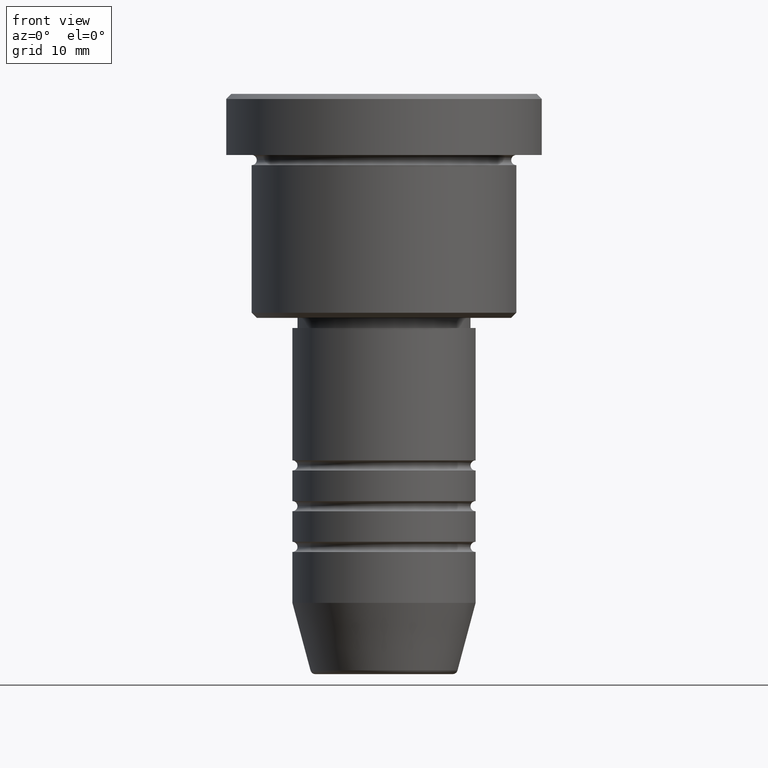
[diagram: clean part render]
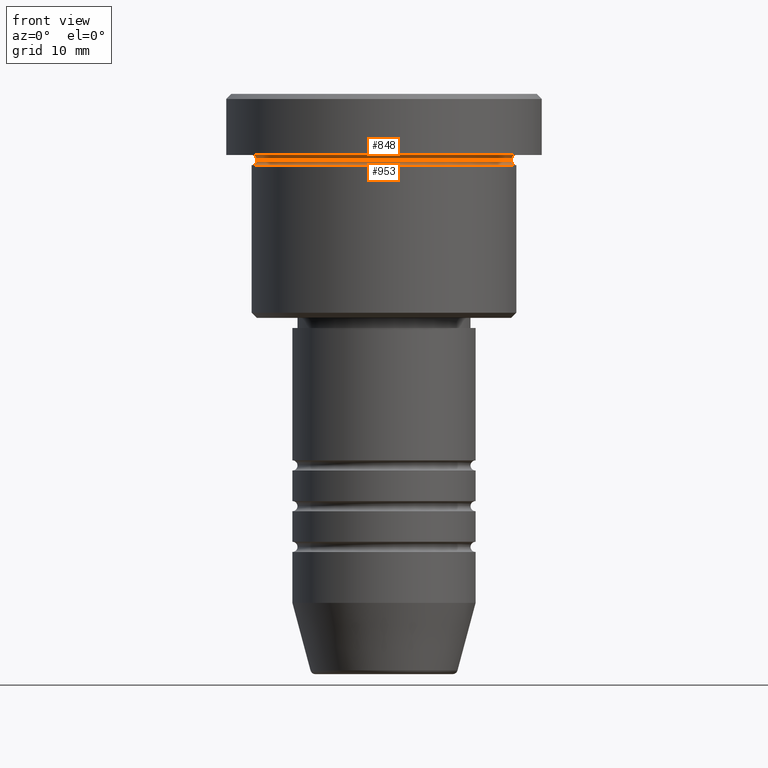
[diagram: same view with one multi-face feature highlighted, each face labeled with its STEP entity id]
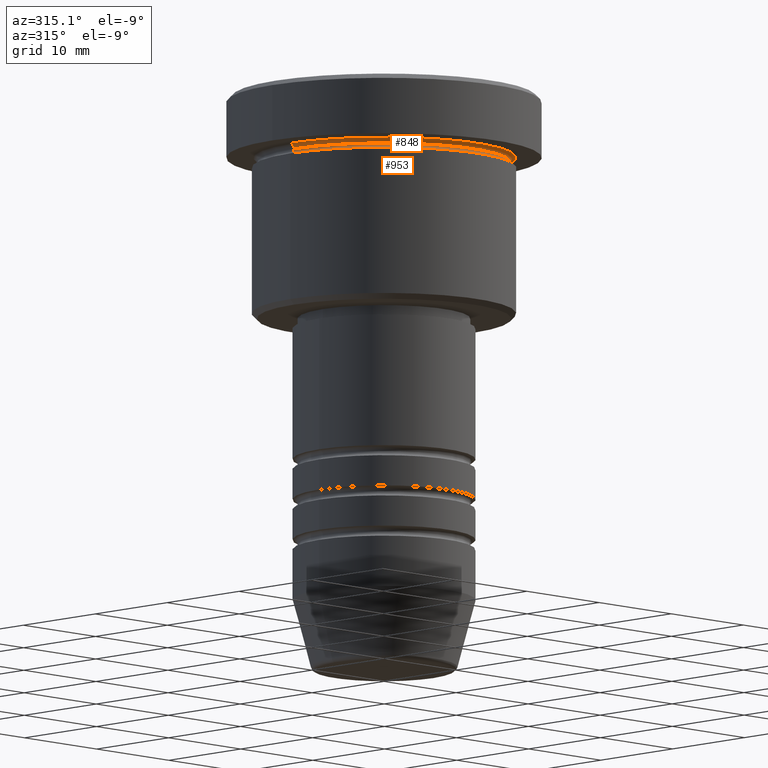
[diagram: same view with one multi-face feature highlighted, each face labeled with its STEP entity id]
A machine part, front view. The highlighted faces form ONE feature: a constant-radius fillet chain: 2 tangent blend faces with common blend radius 0.5 mm. The faces share edges in the B-rep.
A second angle (auxiliary view) of the same feature is appended — it is thin or edge-on in the first view.
Their STEP definitions:
[1] entity #848 (Torus):
#8 = CARTESIAN_POINT ( 'NONE',  ( 12.49999999999999822, 0.000000000000000000, -6.499999999999995559 ) ) ;
#29 = EDGE_LOOP ( 'NONE', ( #573, #496, #822, #143 ) ) ;
#44 = CIRCLE ( 'NONE', #382, 0.5000000000000004441 ) ;
#92 = DIRECTION ( 'NONE',  ( 1.000000000000000000, 0.000000000000000000, 0.000000000000000000 ) ) ;
#99 = EDGE_CURVE ( 'NONE', #990, #219, #618, .T. ) ;
#143 = ORIENTED_EDGE ( 'NONE', *, *, #99, .F. ) ;
#147 = EDGE_CURVE ( 'NONE', #996, #992, #44, .T. ) ;
#160 = CIRCLE ( 'NONE', #558, 13.00000000000000000 ) ;
#197 = AXIS2_PLACEMENT_3D ( 'NONE', #1046, #302, #389 ) ;
#214 = CIRCLE ( 'NONE', #1061, 12.49999999999999822 ) ;
#219 = VERTEX_POINT ( 'NONE', #483 ) ;
#236 = CARTESIAN_POINT ( 'NONE',  ( 0.000000000000000000, 0.000000000000000000, -6.499999999999995559 ) ) ;
#248 = DIRECTION ( 'NONE',  ( -1.000000000000000000, 0.000000000000000000, 0.000000000000000000 ) ) ;
#289 = DIRECTION ( 'NONE',  ( -1.000000000000000000, -1.224646799147353454E-16, 0.000000000000000000 ) ) ;
#300 = DIRECTION ( 'NONE',  ( -0.000000000000000000, -0.000000000000000000, 1.000000000000000000 ) ) ;
#302 = DIRECTION ( 'NONE',  ( -0.000000000000000000, -1.000000000000000000, -0.000000000000000000 ) ) ;
#366 = CARTESIAN_POINT ( 'NONE',  ( 13.00000000000000000, 1.592040838891559095E-15, -5.999999999999994671 ) ) ;
#371 = CARTESIAN_POINT ( 'NONE',  ( -12.49999999999999822, 1.561424668912875308E-15, -6.499999999999995559 ) ) ;
#377 = CARTESIAN_POINT ( 'NONE',  ( 13.00000000000000000, 1.592040838891559095E-15, -6.499999999999995559 ) ) ;
#382 = AXIS2_PLACEMENT_3D ( 'NONE', #377, #547, #289 ) ;
#389 = DIRECTION ( 'NONE',  ( 0.000000000000000000, 0.000000000000000000, -1.000000000000000000 ) ) ;
#483 = CARTESIAN_POINT ( 'NONE',  ( -13.00000000000000000, 0.000000000000000000, -5.999999999999994671 ) ) ;
#496 = ORIENTED_EDGE ( 'NONE', *, *, #147, .T. ) ;
#546 = CARTESIAN_POINT ( 'NONE',  ( 0.000000000000000000, 0.000000000000000000, -5.999999999999995559 ) ) ;
#547 = DIRECTION ( 'NONE',  ( -1.224646799147353207E-16, 1.000000000000000000, 0.000000000000000000 ) ) ;
#558 = AXIS2_PLACEMENT_3D ( 'NONE', #546, #300, #995 ) ;
#569 = EDGE_CURVE ( 'NONE', #990, #996, #214, .T. ) ;
#573 = ORIENTED_EDGE ( 'NONE', *, *, #569, .T. ) ;
#618 = CIRCLE ( 'NONE', #197, 0.5000000000000004441 ) ;
#705 = AXIS2_PLACEMENT_3D ( 'NONE', #236, #786, #248 ) ;
#715 = FACE_OUTER_BOUND ( 'NONE', #29, .T. ) ;
#786 = DIRECTION ( 'NONE',  ( 0.000000000000000000, 0.000000000000000000, -1.000000000000000000 ) ) ;
#822 = ORIENTED_EDGE ( 'NONE', *, *, #913, .F. ) ;
#848 = ADVANCED_FACE ( 'NONE', ( #715 ), #1044, .F. ) ;
#913 = EDGE_CURVE ( 'NONE', #219, #992, #160, .T. ) ;
#990 = VERTEX_POINT ( 'NONE', #371 ) ;
#992 = VERTEX_POINT ( 'NONE', #366 ) ;
#995 = DIRECTION ( 'NONE',  ( -1.000000000000000000, 0.000000000000000000, 0.000000000000000000 ) ) ;
#996 = VERTEX_POINT ( 'NONE', #8 ) ;
#997 = DIRECTION ( 'NONE',  ( -0.000000000000000000, -0.000000000000000000, 1.000000000000000000 ) ) ;
#1010 = CARTESIAN_POINT ( 'NONE',  ( 0.000000000000000000, 0.000000000000000000, -6.499999999999995559 ) ) ;
#1044 = TOROIDAL_SURFACE ( 'NONE', #705, 13.00000000000000000, 0.5000000000000000000 ) ;
#1046 = CARTESIAN_POINT ( 'NONE',  ( -13.00000000000000000, 0.000000000000000000, -6.499999999999995559 ) ) ;
#1061 = AXIS2_PLACEMENT_3D ( 'NONE', #1010, #997, #92 ) ;
[2] entity #953 (Torus):
#6 = CARTESIAN_POINT ( 'NONE',  ( 13.00000000000000178, 0.000000000000000000, -6.999999999999995559 ) ) ;
#8 = CARTESIAN_POINT ( 'NONE',  ( 12.49999999999999822, 0.000000000000000000, -6.499999999999995559 ) ) ;
#85 = TOROIDAL_SURFACE ( 'NONE', #818, 13.00000000000000000, 0.5000000000000000000 ) ;
#92 = DIRECTION ( 'NONE',  ( 1.000000000000000000, 0.000000000000000000, 0.000000000000000000 ) ) ;
#95 = DIRECTION ( 'NONE',  ( -0.000000000000000000, -0.000000000000000000, 1.000000000000000000 ) ) ;
#171 = EDGE_LOOP ( 'NONE', ( #534, #1067, #478, #1097 ) ) ;
#174 = CARTESIAN_POINT ( 'NONE',  ( 0.000000000000000000, 0.000000000000000000, -6.499999999999995559 ) ) ;
#205 = DIRECTION ( 'NONE',  ( 1.000000000000000000, 0.000000000000000000, 0.000000000000000000 ) ) ;
#214 = CIRCLE ( 'NONE', #1061, 12.49999999999999822 ) ;
#301 = DIRECTION ( 'NONE',  ( 0.000000000000000000, -1.000000000000000000, 0.000000000000000000 ) ) ;
#371 = CARTESIAN_POINT ( 'NONE',  ( -12.49999999999999822, 1.561424668912875308E-15, -6.499999999999995559 ) ) ;
#381 = EDGE_CURVE ( 'NONE', #600, #956, #664, .T. ) ;
#412 = DIRECTION ( 'NONE',  ( -0.000000000000000000, -0.000000000000000000, 1.000000000000000000 ) ) ;
#426 = CARTESIAN_POINT ( 'NONE',  ( 0.000000000000000000, 0.000000000000000000, -6.999999999999995559 ) ) ;
#438 = AXIS2_PLACEMENT_3D ( 'NONE', #426, #412, #787 ) ;
#465 = DIRECTION ( 'NONE',  ( 0.000000000000000000, 0.000000000000000000, -1.000000000000000000 ) ) ;
#478 = ORIENTED_EDGE ( 'NONE', *, *, #381, .T. ) ;
#534 = ORIENTED_EDGE ( 'NONE', *, *, #569, .F. ) ;
#557 = CIRCLE ( 'NONE', #1180, 0.5000000000000004441 ) ;
#569 = EDGE_CURVE ( 'NONE', #990, #996, #214, .T. ) ;
#600 = VERTEX_POINT ( 'NONE', #928 ) ;
#659 = EDGE_CURVE ( 'NONE', #990, #600, #852, .T. ) ;
#664 = CIRCLE ( 'NONE', #438, 13.00000000000000178 ) ;
#726 = FACE_OUTER_BOUND ( 'NONE', #171, .T. ) ;
#731 = EDGE_CURVE ( 'NONE', #996, #956, #557, .T. ) ;
#767 = CARTESIAN_POINT ( 'NONE',  ( 13.00000000000000000, 0.000000000000000000, -6.499999999999995559 ) ) ;
#771 = CARTESIAN_POINT ( 'NONE',  ( -13.00000000000000000, 1.592040838891559095E-15, -6.499999999999995559 ) ) ;
#787 = DIRECTION ( 'NONE',  ( 1.000000000000000000, 0.000000000000000000, 0.000000000000000000 ) ) ;
#818 = AXIS2_PLACEMENT_3D ( 'NONE', #174, #95, #205 ) ;
#852 = CIRCLE ( 'NONE', #872, 0.5000000000000004441 ) ;
#872 = AXIS2_PLACEMENT_3D ( 'NONE', #771, #874, #1030 ) ;
#874 = DIRECTION ( 'NONE',  ( 1.224646799147353207E-16, 1.000000000000000000, 0.000000000000000000 ) ) ;
#928 = CARTESIAN_POINT ( 'NONE',  ( -13.00000000000000178, 1.592040838891559293E-15, -6.999999999999995559 ) ) ;
#953 = ADVANCED_FACE ( 'NONE', ( #726 ), #85, .F. ) ;
#956 = VERTEX_POINT ( 'NONE', #6 ) ;
#990 = VERTEX_POINT ( 'NONE', #371 ) ;
#996 = VERTEX_POINT ( 'NONE', #8 ) ;
#997 = DIRECTION ( 'NONE',  ( -0.000000000000000000, -0.000000000000000000, 1.000000000000000000 ) ) ;
#1010 = CARTESIAN_POINT ( 'NONE',  ( 0.000000000000000000, 0.000000000000000000, -6.499999999999995559 ) ) ;
#1030 = DIRECTION ( 'NONE',  ( -1.000000000000000000, 1.224646799147353454E-16, 0.000000000000000000 ) ) ;
#1061 = AXIS2_PLACEMENT_3D ( 'NONE', #1010, #997, #92 ) ;
#1067 = ORIENTED_EDGE ( 'NONE', *, *, #659, .T. ) ;
#1097 = ORIENTED_EDGE ( 'NONE', *, *, #731, .F. ) ;
#1180 = AXIS2_PLACEMENT_3D ( 'NONE', #767, #301, #465 ) ;